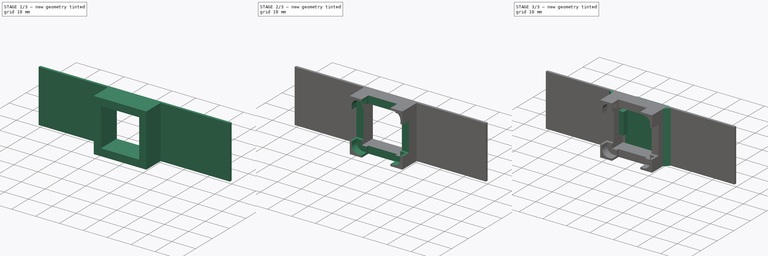
[diagram: build sequence overview — one tinted view per stage of 3, left to right]
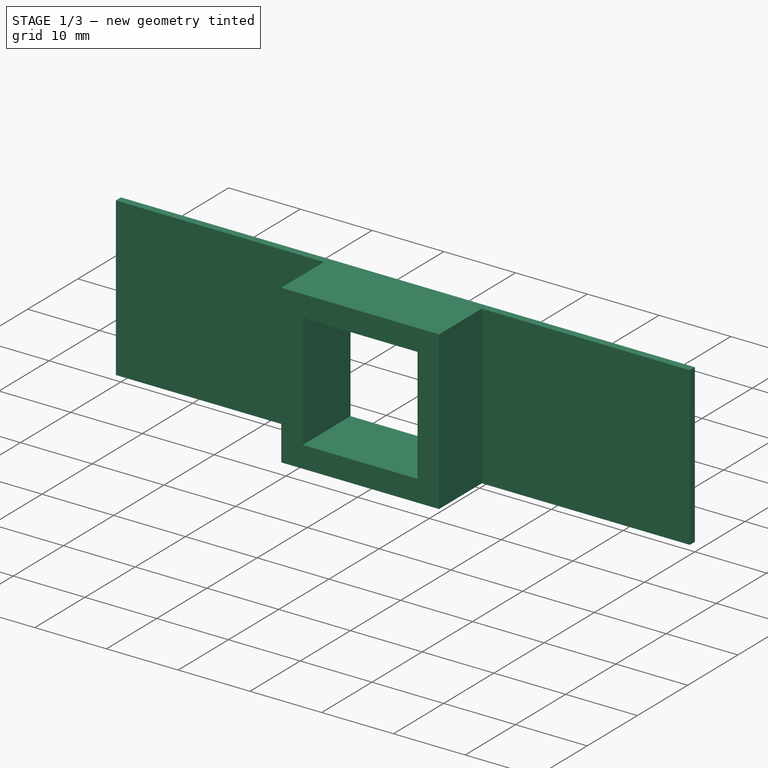
[diagram: stage 1 of 3 — iso view after this stage's code; geometry added in this stage tinted green]
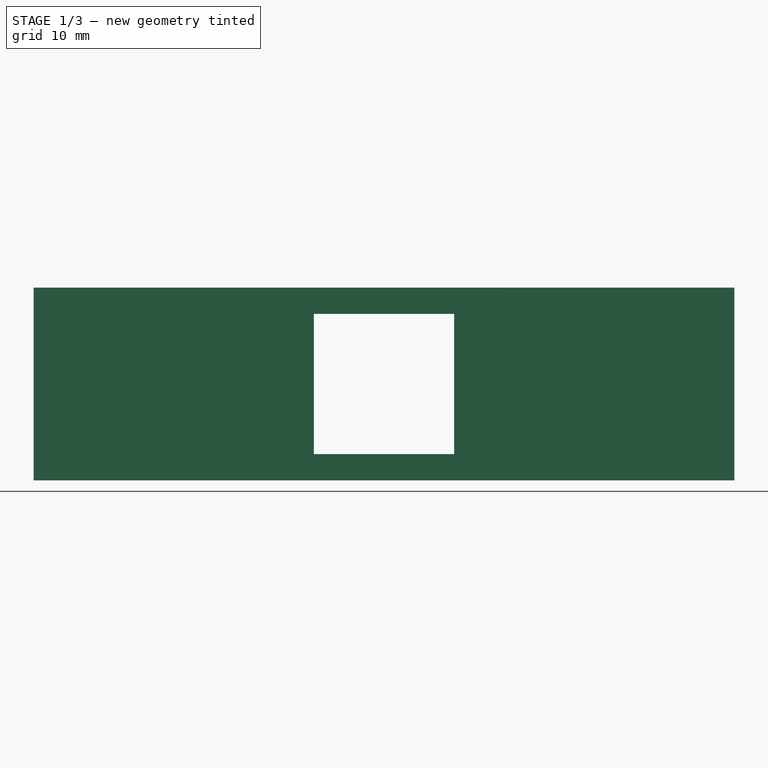
[diagram: stage 1 of 3 — front view after this stage's code; geometry added in this stage tinted green]
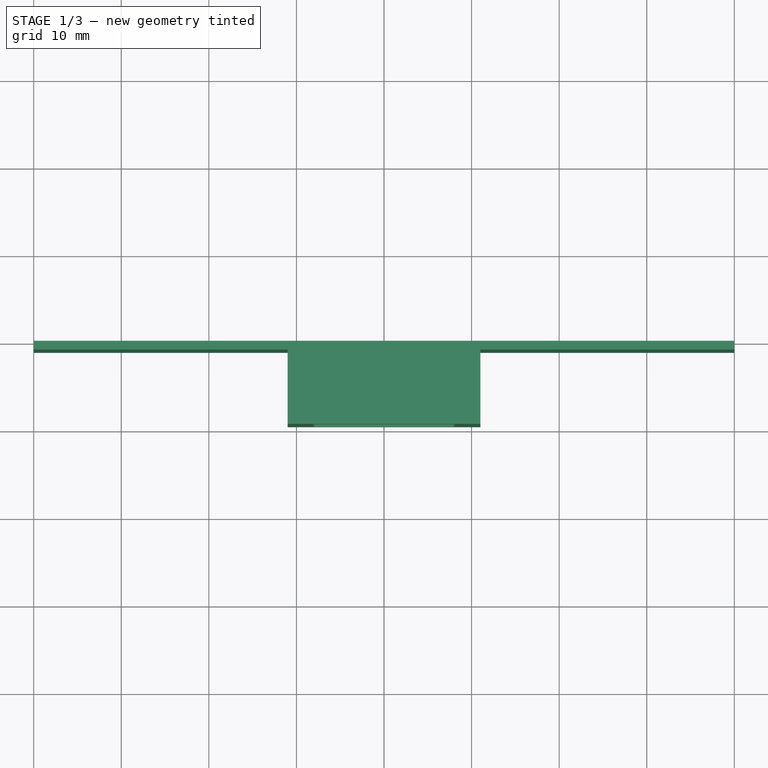
[diagram: stage 1 of 3 — top view after this stage's code; geometry added in this stage tinted green]
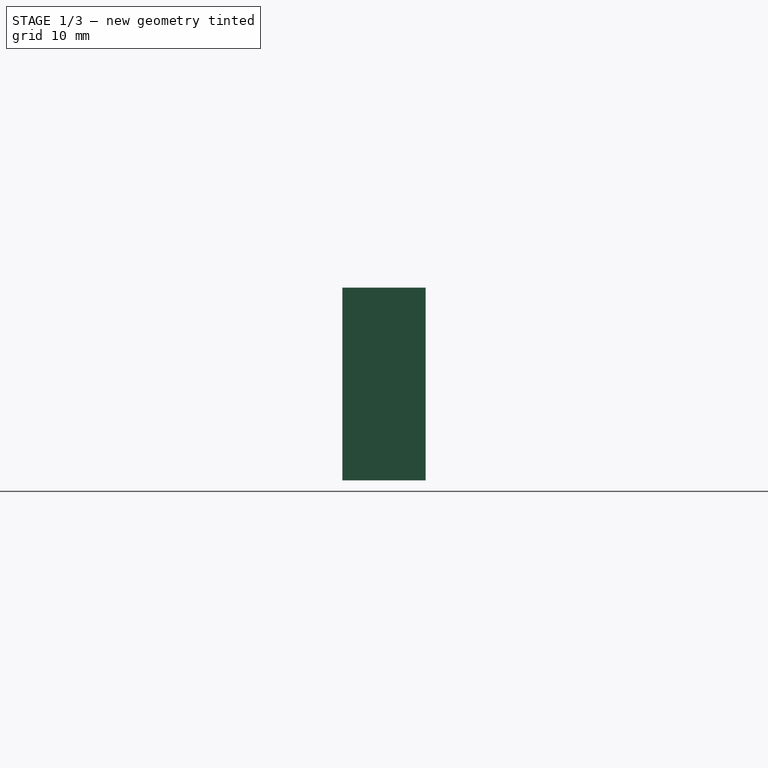
[diagram: stage 1 of 3 — right view after this stage's code; geometry added in this stage tinted green]
FCSTD DOCUMENT  (FreeCAD 0.19R23707 (Git))
Label: m8q-5883_cessna_182_art_tech_rc_model_mount
License: All rights reserved
LicenseURL: http://en.wikipedia.org/wiki/All_rights_reserved
objects: Part::Feature×6, Sketcher::SketchObject×4, PartDesign::Pad×2, PartDesign::Pocket×2, Part::Compound2×1, PartDesign::Plane×1, PartDesign::Chamfer×1, PartDesign::Body×1
note: 22 computed .brp shape members not serialized (recipe doc carries the construction recipe); baked Part::Feature solids carry a one-line shape summary decoded from their .brp

FEATURE [Sketcher::SketchObject] Sketch
  FullyConstrained = true
  MapMode = 5
  Placement = pos=(0,0,0) rot=(1,0,0;1.5708rad)
  Support = -> [XZ_Plane]
  sketch-geometry (8):
    g0: LineSegment StartX=-40 StartY=11 StartZ=0 EndX=40 EndY=11 EndZ=0
    g1: LineSegment StartX=40 StartY=11 StartZ=0 EndX=40 EndY=-11 EndZ=0
    g2: LineSegment StartX=40 StartY=-11 StartZ=0 EndX=-40 EndY=-11 EndZ=0
    g3: LineSegment StartX=-40 StartY=-11 StartZ=0 EndX=-40 EndY=11 EndZ=0
    g4: LineSegment StartX=-8 StartY=8 StartZ=0 EndX=8 EndY=8 EndZ=0
    g5: LineSegment StartX=8 StartY=8 StartZ=0 EndX=8 EndY=-8 EndZ=0
    g6: LineSegment StartX=8 StartY=-8 StartZ=0 EndX=-8 EndY=-8 EndZ=0
    g7: LineSegment StartX=-8 StartY=-8 StartZ=0 EndX=-8 EndY=8 EndZ=0
  constraints (22):
    c: Coincident(g0,g1)
    c: Coincident(g1,g2)
    c: Coincident(g2,g3)
    c: Coincident(g3,g0)
    c: Horizontal(g0)
    c: Horizontal(g2)
    c: Vertical(g1)
    c: Vertical(g3)
    c: Symmetric(g0,g2,g-1)
    c: DistanceX(g0,g0) = 80
    c: Coincident(g4,g5)
    c: Coincident(g5,g6)
    c: Coincident(g6,g7)
    c: Coincident(g7,g4)
    c: Horizontal(g4)
    c: Horizontal(g6)
    c: Vertical(g5)
    c: Vertical(g7)
    c: Symmetric(g4,g6,g-1)
    c: Equal(g5,g4)
    c: DistanceX(g4,g4) = 16
    c: DistanceY(g1,g5) = 3
FEATURE [PartDesign::Pad] Pad
  Direction = (1,1,1)
  Length = 1
  Length2 = 100
  Placement = pos=(0,0,0) rot=(1,0,0;1.5708rad)
  Profile = -> Sketch
  Type = 0
FEATURE [Sketcher::SketchObject] Sketch001
  ExternalGeometry = -> [Pad]
  FullyConstrained = true
  MapMode = 5
  Placement = pos=(0,-1,4e-16) rot=(1,0,0;1.5708rad)
  Support = -> [Pad]
  sketch-geometry (8):
    g0: LineSegment StartX=-8 StartY=8 StartZ=0 EndX=8 EndY=8 EndZ=0
    g1: LineSegment StartX=8 StartY=8 StartZ=0 EndX=8 EndY=-8 EndZ=0
    g2: LineSegment StartX=8 StartY=-8 StartZ=0 EndX=-8 EndY=-8 EndZ=0
    g3: LineSegment StartX=-8 StartY=-8 StartZ=0 EndX=-8 EndY=8 EndZ=0
    g4: LineSegment StartX=-11 StartY=11 StartZ=0 EndX=11 EndY=11 EndZ=0
    g5: LineSegment StartX=11 StartY=11 StartZ=0 EndX=11 EndY=-11 EndZ=0
    g6: LineSegment StartX=11 StartY=-11 StartZ=0 EndX=-11 EndY=-11 EndZ=0
    g7: LineSegment StartX=-11 StartY=-11 StartZ=0 EndX=-11 EndY=11 EndZ=0
  constraints (21):
    c: Coincident(g0,g1)
    c: Coincident(g1,g2)
    c: Coincident(g2,g3)
    c: Coincident(g3,g0)
    c: Horizontal(g0)
    c: Horizontal(g2)
    c: Vertical(g1)
    c: Vertical(g3)
    c: Coincident(g0,g-3)
    c: Coincident(g1,g-4)
    c: Coincident(g4,g5)
    c: Coincident(g5,g6)
    c: Coincident(g6,g7)
    c: Coincident(g7,g4)
    c: Horizontal(g4)
    c: Horizontal(g6)
    c: Vertical(g5)
    c: Vertical(g7)
    c: DistanceX(g0,g4) = 3
    c: Symmetric(g4,g6,g-1)
    c: Equal(g5,g4)
FEATURE [PartDesign::Pad] Pad001
  BaseFeature = -> Pad
  Direction = (1,1,1)
  Length = 8.5
  Length2 = 100
  Placement = pos=(0,0,0) rot=(1,0,0;1.5708rad)
  Profile = -> Sketch001
  Type = 0
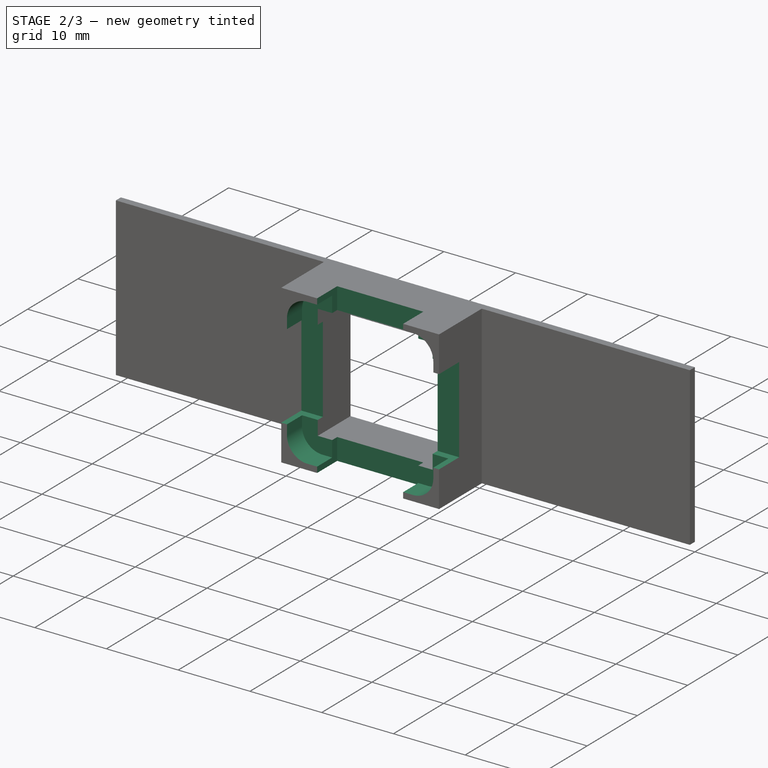
[diagram: stage 2 of 3 — iso view after this stage's code; geometry added in this stage tinted green]
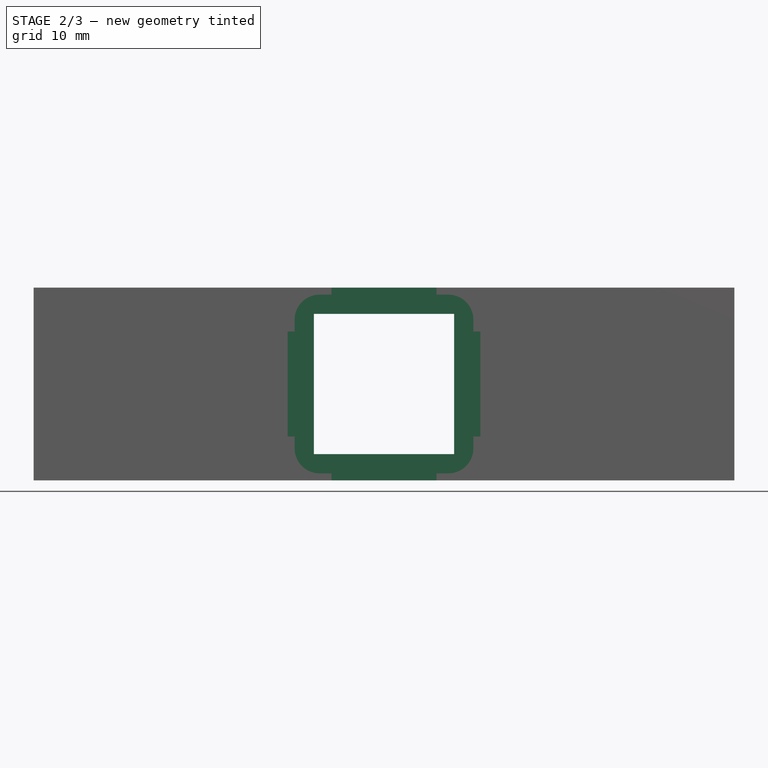
[diagram: stage 2 of 3 — front view after this stage's code; geometry added in this stage tinted green]
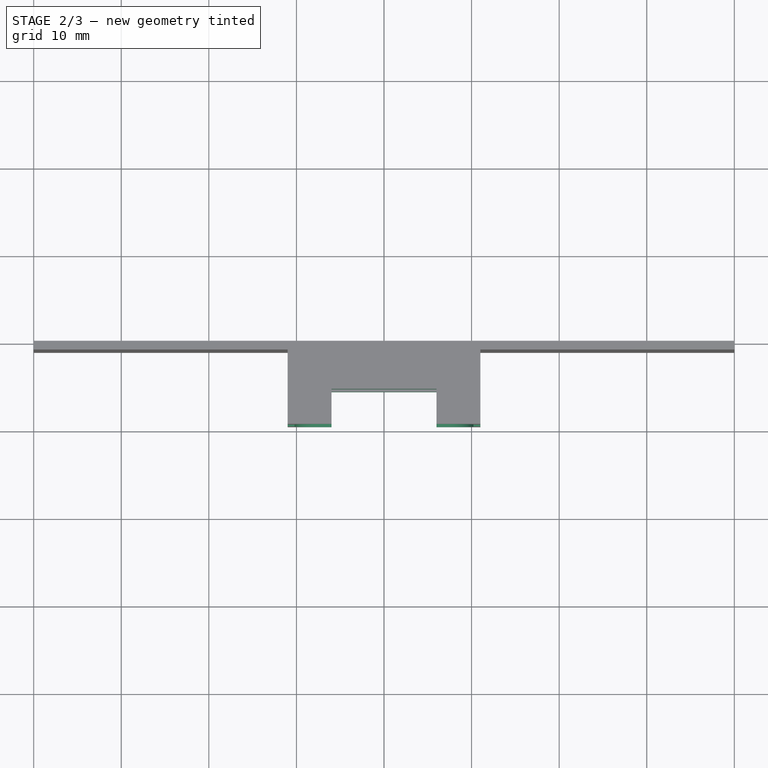
[diagram: stage 2 of 3 — top view after this stage's code; geometry added in this stage tinted green]
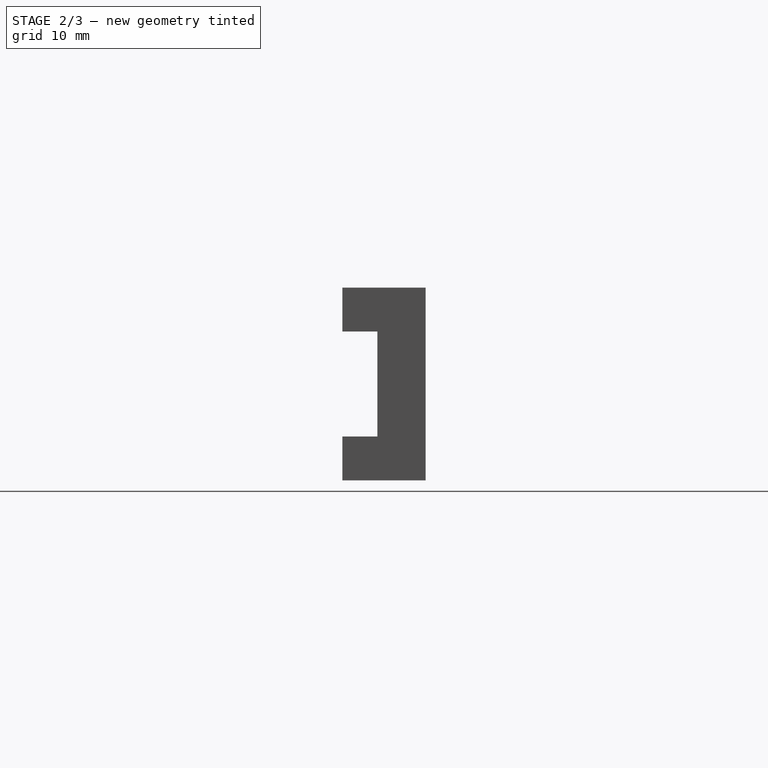
[diagram: stage 2 of 3 — right view after this stage's code; geometry added in this stage tinted green]
FEATURE [PartDesign::Plane] DatumPlane
  Length = 92.6491
  MapMode = 5
  Placement = pos=(0,-9.5,5.3e-15) rot=(1,0,0;1.5708rad)
  ResizeMode = 0
  Support = -> [Pad001]
  Width = 62.6491
FEATURE [Sketcher::SketchObject] Sketch002
  ExternalGeometry = -> [Pad001]
  FullyConstrained = false
  MapMode = 5
  Placement = pos=(0,-9.5,5.3e-15) rot=(1,0,0;1.5708rad)
  Support = -> [DatumPlane]
  sketch-geometry (16):
    g0: LineSegment StartX=-10.2 StartY=10.2 StartZ=0 EndX=10.2 EndY=10.2 EndZ=0
    g1: LineSegment StartX=10.2 StartY=10.2 StartZ=0 EndX=10.2 EndY=-10.2 EndZ=0
    g2: LineSegment StartX=10.2 StartY=-10.2 StartZ=0 EndX=-10.2 EndY=-10.2 EndZ=0
    g3: LineSegment StartX=-10.2 StartY=-10.2 StartZ=0 EndX=-10.2 EndY=10.2 EndZ=0
    g4: LineSegment StartX=-7.35546 StartY=7.35546 StartZ=0 EndX=7.35546 EndY=7.35546 EndZ=0
    g5: LineSegment StartX=7.35546 StartY=7.35546 StartZ=0 EndX=7.35546 EndY=-7.35546 EndZ=0
    g6: LineSegment StartX=7.35546 StartY=-7.35546 StartZ=0 EndX=-7.35546 EndY=-7.35546 EndZ=0
    g7: LineSegment StartX=-7.35546 StartY=-7.35546 StartZ=0 EndX=-7.35546 EndY=7.35546 EndZ=0
    g8: ArcOfCircle CenterX=7.35546 CenterY=7.35546 CenterZ=0 NormalX=0 NormalY=0 NormalZ=1 AngleXU=0 Radius=2.84454 StartAngle=0 EndAngle=1.5708
    g9: ArcOfCircle CenterX=7.35546 CenterY=-7.35546 CenterZ=0 NormalX=0 NormalY=0 NormalZ=1 AngleXU=0 Radius=2.84454 StartAngle=4.71239 EndAngle=6.28319
    g10: ArcOfCircle CenterX=-7.35546 CenterY=-7.35546 CenterZ=0 NormalX=0 NormalY=0 NormalZ=1 AngleXU=0 Radius=2.84454 StartAngle=3.14159 EndAngle=4.71239
    g11: ArcOfCircle CenterX=-7.35546 CenterY=7.35546 CenterZ=0 NormalX=0 NormalY=0 NormalZ=1 AngleXU=0 Radius=2.84454 StartAngle=1.57079 EndAngle=3.14159
    g12: LineSegment StartX=-7.35544 StartY=10.2 StartZ=0 EndX=7.35546 EndY=10.2 EndZ=0
    g13: LineSegment StartX=10.2 StartY=7.35546 StartZ=0 EndX=10.2 EndY=-7.35544 EndZ=0
    g14: LineSegment StartX=-10.2 StartY=7.35546 StartZ=0 EndX=-10.2 EndY=-7.35546 EndZ=0
    g15: LineSegment StartX=-7.35547 StartY=-10.2 StartZ=0 EndX=7.35546 EndY=-10.2 EndZ=0
  constraints (41):
    c: Coincident(g0,g1)
    c: Coincident(g1,g2)
    c: Coincident(g2,g3)
    c: Coincident(g3,g0)
    c: Horizontal(g0)
    c: Horizontal(g2)
    c: Vertical(g1)
    c: Vertical(g3)
    c: Symmetric(g0,g2,g-1)
    c: Equal(g1,g0)
    c: Coincident(g4,g5)
    c: Coincident(g5,g6)
    c: Coincident(g6,g7)
    c: Coincident(g7,g4)
    c: Horizontal(g4)
    c: Horizontal(g6)
    c: Vertical(g5)
    c: Vertical(g7)
    c: Symmetric(g4,g6,g-1)
    c: Equal(g5,g4)
    c: Coincident(g8,g4)
    c: PointOnObject(g8,g0)
    c: Tangent(g8,g1) = 1.5708
    c: Coincident(g9,g5)
    c: PointOnObject(g9,g1)
    c: Tangent(g9,g2) = 1.5708
    c: Coincident(g10,g6)
    c: PointOnObject(g10,g2)
    c: Tangent(g10,g3) = 1.5708
    c: Coincident(g11,g4)
    c: PointOnObject(g11,g0)
    c: Tangent(g11,g3) = 1.5708
    c: Coincident(g12,g11)
    c: Coincident(g12,g8)
    c: Coincident(g13,g8)
    c: Coincident(g13,g9)
    c: Coincident(g14,g11)
    c: Coincident(g14,g10)
    c: Coincident(g15,g10)
    c: Coincident(g15,g9)
    c: DistanceX(g0,g-3) = 0.8
FEATURE [PartDesign::Pocket] Pocket
  BaseFeature = -> Pad001
  Length = 3
  Length2 = 100
  Placement = pos=(0,0,0) rot=(1,0,0;1.5708rad)
  Profile = -> Sketch002
  Type = 0
FEATURE [Sketcher::SketchObject] Sketch003
  FullyConstrained = false
  MapMode = 5
  Placement = pos=(0,-9.5,5.3e-15) rot=(1,0,0;1.5708rad)
  Support = -> [DatumPlane]
  sketch-geometry (20):
    g0: LineSegment StartX=-14.2562 StartY=14.2562 StartZ=0 EndX=14.2562 EndY=14.2562 EndZ=0
    g1: LineSegment StartX=14.2562 StartY=14.2562 StartZ=0 EndX=14.2562 EndY=-14.2562 EndZ=0
    g2: LineSegment StartX=14.2562 StartY=-14.2562 StartZ=0 EndX=-14.2562 EndY=-14.2562 EndZ=0
    g3: LineSegment StartX=-14.2562 StartY=-14.2562 StartZ=0 EndX=-14.2562 EndY=14.2562 EndZ=0
    g4: LineSegment StartX=-14.2562 StartY=6 StartZ=0 EndX=-6 EndY=6 EndZ=0
    g5: LineSegment StartX=-6 StartY=6 StartZ=0 EndX=-6 EndY=14.2562 EndZ=0
    g6: LineSegment StartX=-6 StartY=14.2562 StartZ=0 EndX=6 EndY=14.2562 EndZ=0
    g7: LineSegment StartX=6 StartY=14.2562 StartZ=0 EndX=6 EndY=6 EndZ=0
    g8: LineSegment StartX=6 StartY=6 StartZ=0 EndX=14.2562 EndY=6 EndZ=0
    g9: LineSegment StartX=14.2562 StartY=6 StartZ=0 EndX=14.2562 EndY=-6 EndZ=0
    g10: LineSegment StartX=14.2562 StartY=-6 StartZ=0 EndX=6 EndY=-6 EndZ=0
    g11: LineSegment StartX=6 StartY=-6 StartZ=0 EndX=6 EndY=-14.2562 EndZ=0
    g12: LineSegment StartX=6 StartY=-14.2562 StartZ=0 EndX=-6 EndY=-14.2562 EndZ=0
    g13: LineSegment StartX=-6 StartY=-14.2562 StartZ=0 EndX=-6 EndY=-6 EndZ=0
    g14: LineSegment StartX=-6 StartY=-6 StartZ=0 EndX=-14.2562 EndY=-6 EndZ=0
    g15: LineSegment StartX=-14.2562 StartY=-6 StartZ=0 EndX=-14.2562 EndY=6 EndZ=0
    g16: LineSegment StartX=-6 StartY=6 StartZ=0 EndX=6 EndY=6 EndZ=0
    g17: LineSegment StartX=6 StartY=6 StartZ=0 EndX=6 EndY=-6 EndZ=0
    g18: LineSegment StartX=6 StartY=-6 StartZ=0 EndX=-6 EndY=-6 EndZ=0
    g19: LineSegment StartX=-6 StartY=-6 StartZ=0 EndX=-6 EndY=6 EndZ=0
  constraints (53):
    c: Coincident(g0,g1)
    c: Coincident(g1,g2)
    c: Coincident(g2,g3)
    c: Coincident(g3,g0)
    c: Horizontal(g0)
    c: Horizontal(g2)
    c: Vertical(g1)
    c: Vertical(g3)
    c: Symmetric(g0,g2,g-1)
    c: Equal(g0,g1)
    c: PointOnObject(g4,g3)
    c: Horizontal(g4)
    c: Coincident(g5,g4)
    c: PointOnObject(g5,g0)
    c: Vertical(g5)
    c: Coincident(g6,g5)
    c: PointOnObject(g6,g0)
    c: Coincident(g7,g6)
    c: Vertical(g7)
    c: Coincident(g8,g7)
    c: PointOnObject(g8,g1)
    c: Horizontal(g8)
    c: Coincident(g9,g8)
    c: PointOnObject(g9,g1)
    c: Coincident(g10,g9)
    c: Horizontal(g10)
    c: Coincident(g11,g10)
    c: PointOnObject(g11,g2)
    c: Vertical(g11)
    c: Coincident(g12,g11)
    c: PointOnObject(g12,g2)
    c: Coincident(g13,g12)
    c: Vertical(g13)
    c: Coincident(g14,g13)
    c: PointOnObject(g14,g3)
    c: Horizontal(g14)
    c: Coincident(g15,g14)
    c: Coincident(g15,g4)
    c: Coincident(g16,g17)
    c: Coincident(g17,g18)
    c: Coincident(g18,g19)
    c: Coincident(g19,g16)
    c: Horizontal(g16)
    c: Horizontal(g18)
    c: Vertical(g17)
    c: Vertical(g19)
    c: Symmetric(g18,g16,g-1)
    c: Coincident(g17,g10)
    c: Coincident(g16,g7)
    c: Coincident(g16,g4)
    c: Coincident(g18,g13)
    c: Equal(g16,g17)
    c: DistanceY(g9,g9) = 12
FEATURE [PartDesign::Pocket] Pocket001
  BaseFeature = -> Pocket
  Length = 4
  Length2 = 100
  Placement = pos=(0,0,0) rot=(1,0,0;1.5708rad)
  Profile = -> Sketch003
  Type = 0
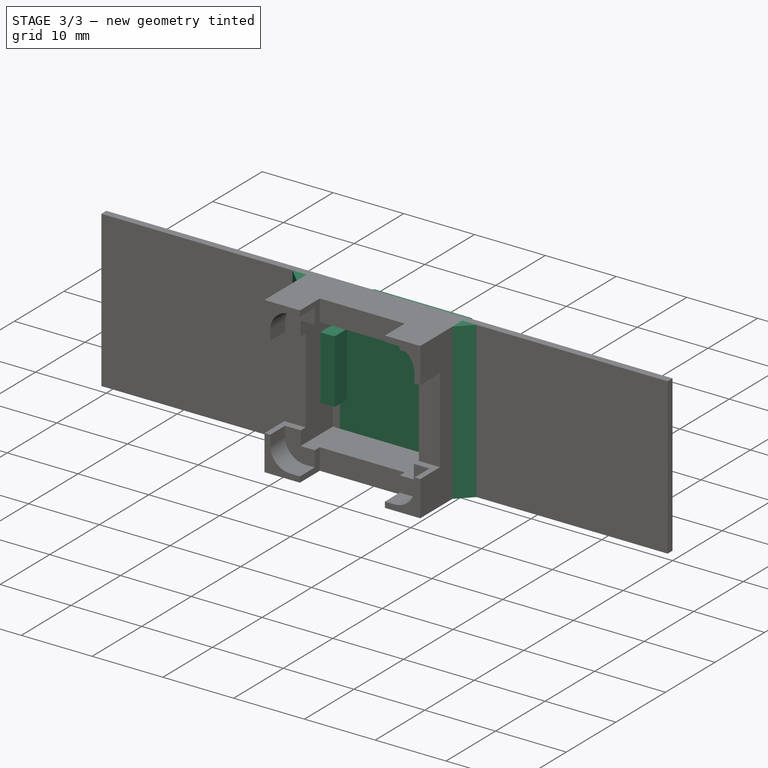
[diagram: stage 3 of 3 — iso view after this stage's code; geometry added in this stage tinted green]
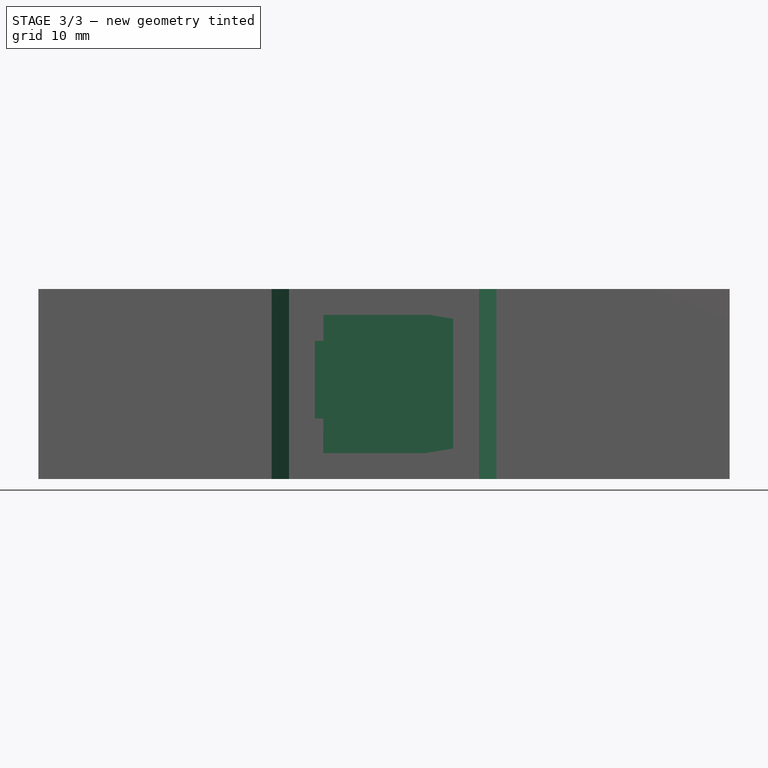
[diagram: stage 3 of 3 — front view after this stage's code; geometry added in this stage tinted green]
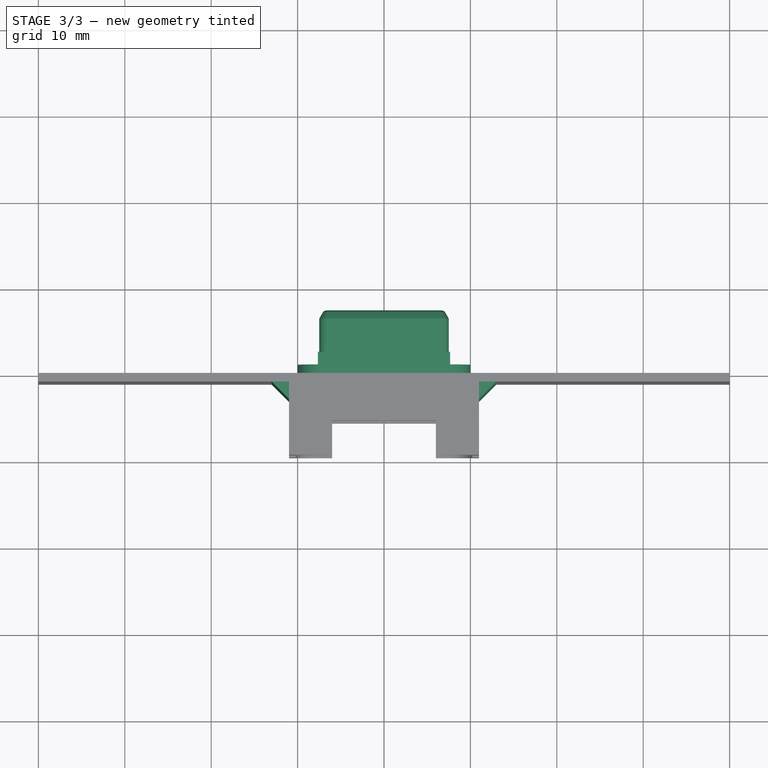
[diagram: stage 3 of 3 — top view after this stage's code; geometry added in this stage tinted green]
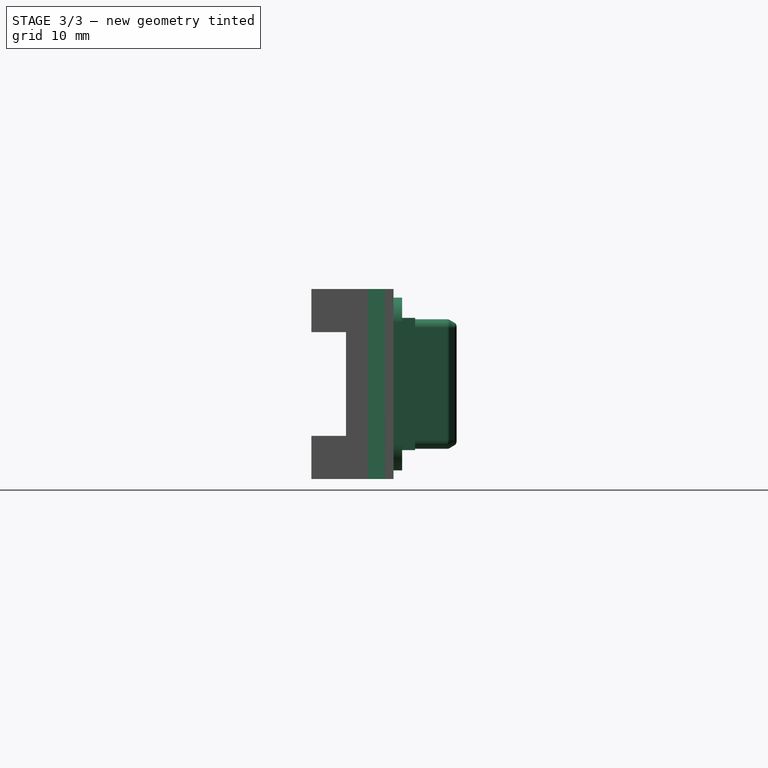
[diagram: stage 3 of 3 — right view after this stage's code; geometry added in this stage tinted green]
FEATURE [Part::Feature] Solid
  shape: bbox 20 x 1 x 20 mm, 10 faces (baked)
FEATURE [Part::Feature] Solid001
  shape: bbox 15.3 x 1 x 15.3 mm, 6 faces (baked)
FEATURE [Part::Feature] Solid002
  shape: bbox 15.3 x 0.5 x 15.3 mm, 6 faces (baked)
FEATURE [Part::Feature] Solid003
  shape: bbox 15.01 x 4.805 x 15.01 mm, 34 faces (baked)
FEATURE [Part::Feature] Solid004
  shape: bbox 4 x 2.5 x 9 mm, 11 faces (baked)
FEATURE [Part::Feature] Solid005
  shape: bbox 4 x 2.5 x 9 mm, 11 faces (baked)
FEATURE [Part::Compound2] Compound  label="M8Q v2"
  Links = -> [Solid,Solid001,Solid002,Solid003,Solid004,Solid005]
FEATURE [PartDesign::Chamfer] Chamfer
  Angle = 45
  Base = -> Pocket001 [Edge27,Edge19]
  BaseFeature = -> Pocket001
  ChamferType = 0
  FlipDirection = false
  Placement = pos=(0,0,0) rot=(1,0,0;1.5708rad)
  Size = 2
  Size2 = 1
  SupportTransform = false
FEATURE [PartDesign::Body] Body
  Group = -> [Sketch,Pad,Sketch001,Pad001,DatumPlane,Sketch002,Pocket,Sketch003,Pocket001,Chamfer]
  Origin = -> Origin
  Placement = pos=(0,7.5,0) rot=(0,0,1;0rad)
  Tip = -> Chamfer
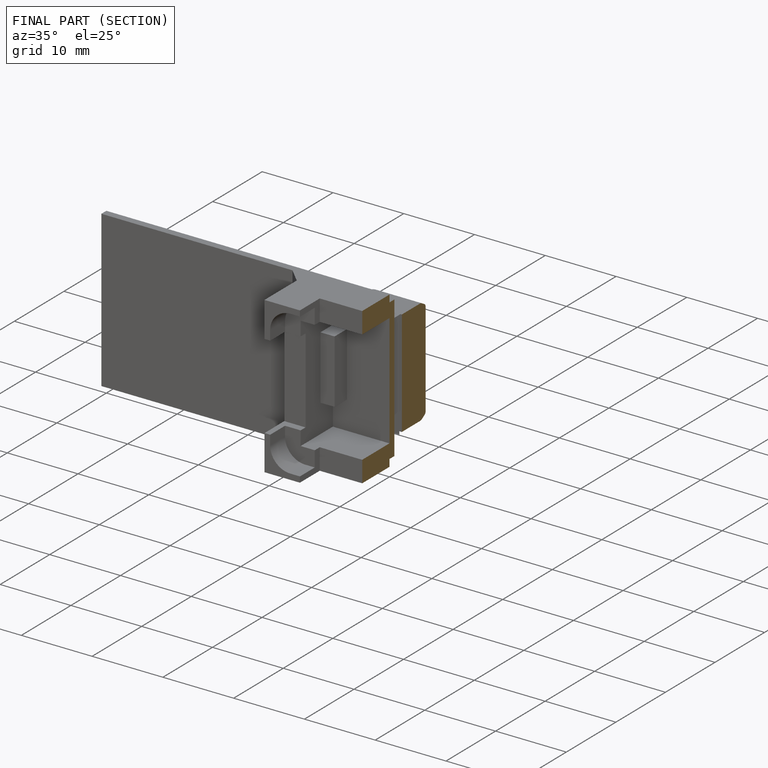
[diagram: finished part — half-section view (interior)]
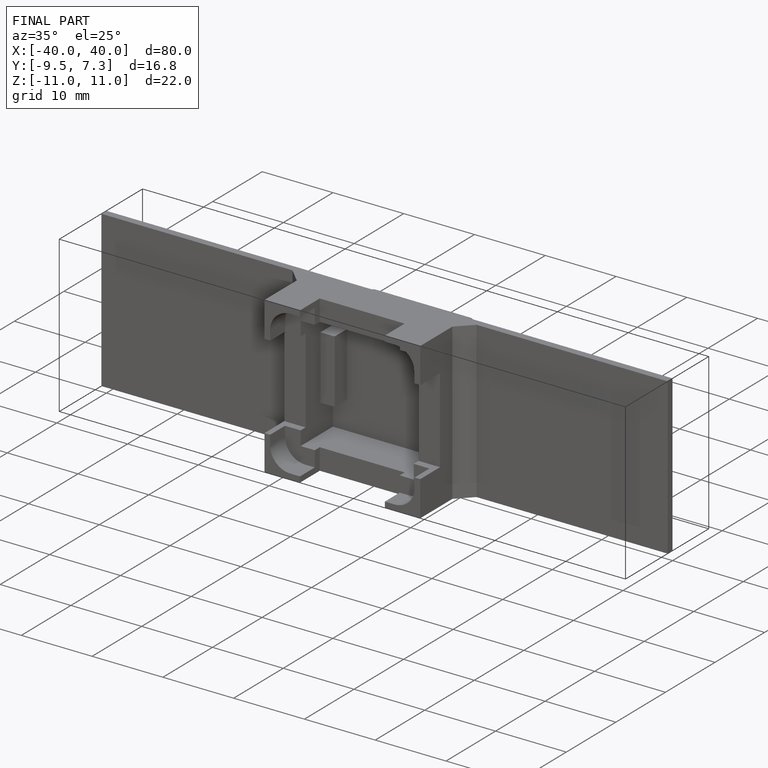
[diagram: finished part — iso view with bounding-box wireframe]
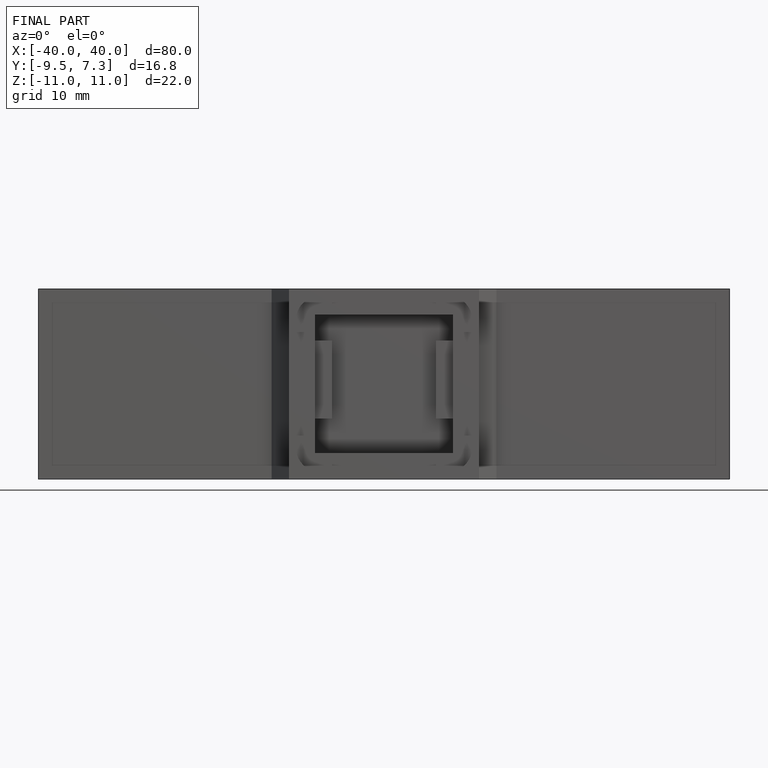
[diagram: finished part — front view with bounding-box wireframe]
